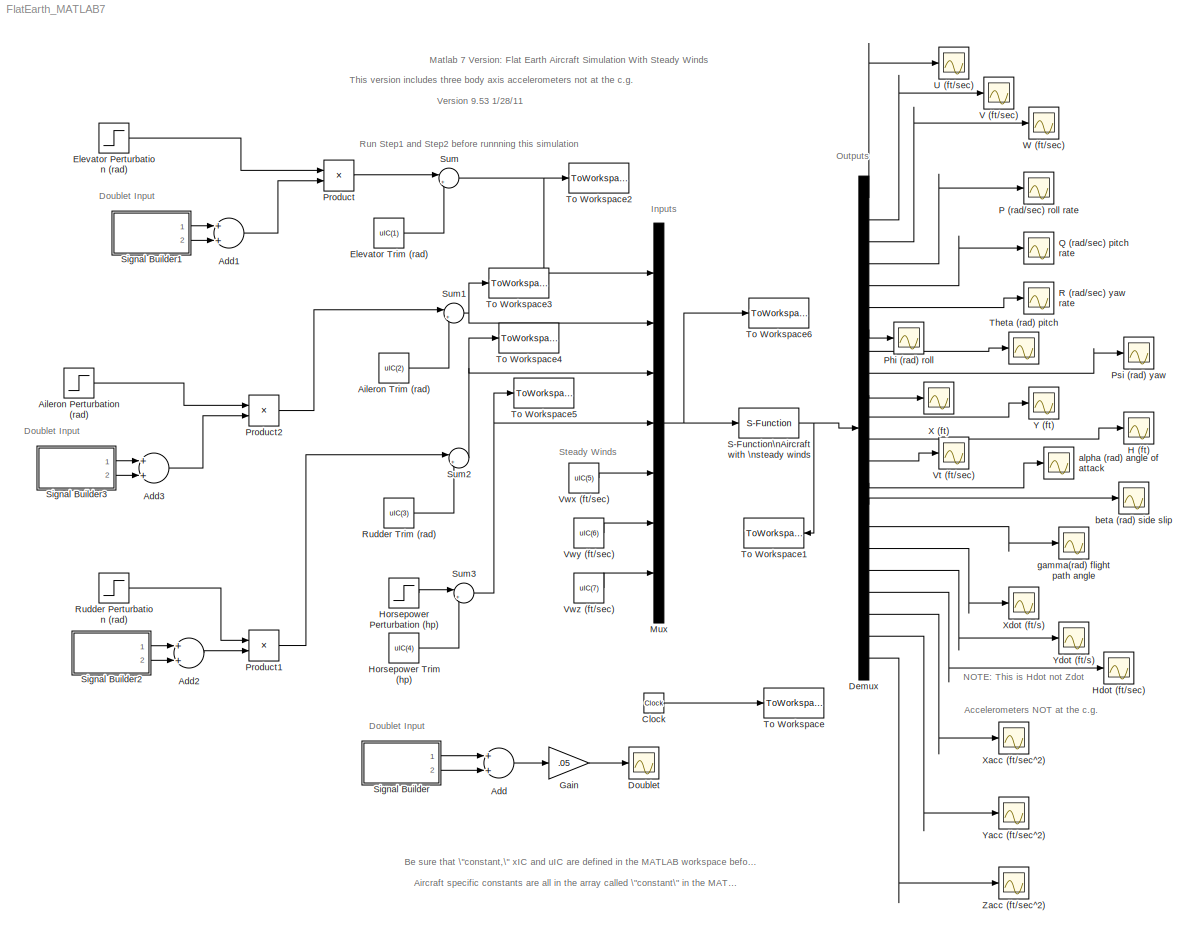
MODEL FlatEarth_MATLAB7
KIND model
BLOCK [Sum] Add
  InputSameDT = off
  OutDataTypeStr = Inherit: Inherit via internal rule
  Ports = [2, 1]
  SID = 1
  SaturateOnIntegerOverflow = off
BLOCK [Sum] Add1
  InputSameDT = off
  OutDataTypeStr = Inherit: Inherit via internal rule
  Ports = [2, 1]
  SID = 69
  SaturateOnIntegerOverflow = off
BLOCK [Sum] Add2
  InputSameDT = off
  OutDataTypeStr = Inherit: Inherit via internal rule
  Ports = [2, 1]
  SID = 84
  SaturateOnIntegerOverflow = off
BLOCK [Sum] Add3
  InputSameDT = off
  OutDataTypeStr = Inherit: Inherit via internal rule
  Ports = [2, 1]
  SID = 91
  SaturateOnIntegerOverflow = off
BLOCK [Step] Aileron Perturbation (rad)
  After = deltaApertRAD
  SID = 2
  SampleTime = 0
BLOCK [Constant] Aileron Trim (rad)
  SID = 3
  Value = uIC(2)
BLOCK [Clock] Clock
  SID = 4
BLOCK [Demux] Demux
  Outputs = 22
  Ports = [1, 22]
  SID = 5
BLOCK [Scope] Doublet
  DataFormat = StructureWithTime
  Floating = off
  NumInputPorts = 1
  Ports = [1]
  SID = 6
  SampleTime = 0
  SaveName = ScopeData22
  ShowLegends = off
BLOCK [Step] Elevator Perturbation (rad)
  After = deltaEpertRAD
  SID = 7
  SampleTime = 0
  Time = 0
BLOCK [Constant] Elevator Trim (rad)
  SID = 8
  Value = uIC(1)
BLOCK [Gain] Gain
  Gain = .05
  OutDataTypeStr = Inherit: Inherit via internal rule
  ParamDataTypeStr = Inherit: Inherit via internal rule
  SID = 9
  SaturateOnIntegerOverflow = off
BLOCK [Scope] H (ft)
  DataFormat = StructureWithTime
  Floating = off
  NumInputPorts = 1
  Ports = [1]
  SID = 10
  SampleTime = 0
  SaveName = ScopeData11
  ShowLegends = off
  TimeRange = 50
  ZoomMode = xonly
BLOCK [Scope] Hdot (ft//sec)
  DataFormat = StructureWithTime
  Floating = off
  NumInputPorts = 1
  Ports = [1]
  SID = 11
  SampleTime = 0
  SaveName = ScopeData18
  ShowLegends = off
BLOCK [Step] Horsepower Perturbation (hp)
  After = deltabhppert
  SID = 12
  SampleTime = 0
BLOCK [Constant] Horsepower Trim (hp)
  SID = 13
  Value = uIC(4)
BLOCK [Mux] Mux
  DisplayOption = bar
  Inputs = 7
  Ports = [7, 1]
  SID = 14
BLOCK [Scope] P (rad//sec) roll rate
  DataFormat = StructureWithTime
  Floating = off
  NumInputPorts = 1
  Ports = [1]
  SID = 15
  SampleTime = 0
  SaveName = ScopeData3
  ShowLegends = off
  ZoomMode = xonly
BLOCK [Scope] Phi (rad) roll
  DataFormat = StructureWithTime
  Floating = off
  NumInputPorts = 1
  Ports = [1]
  SID = 16
  SampleTime = 0
  SaveName = ScopeData6
  ShowLegends = off
BLOCK [Product] Product
  InputSameDT = off
  OutDataTypeStr = Inherit: Inherit via internal rule
  Ports = [2, 1]
  RndMeth = Floor
  SID = 76
  SaturateOnIntegerOverflow = off
BLOCK [Product] Product1
  InputSameDT = off
  OutDataTypeStr = Inherit: Inherit via internal rule
  Ports = [2, 1]
  RndMeth = Floor
  SID = 90
  SaturateOnIntegerOverflow = off
BLOCK [Product] Product2
  InputSameDT = off
  OutDataTypeStr = Inherit: Inherit via internal rule
  Ports = [2, 1]
  RndMeth = Floor
  SID = 92
  SaturateOnIntegerOverflow = off
BLOCK [Scope] Psi (rad) yaw
  DataFormat = StructureWithTime
  Floating = off
  NumInputPorts = 1
  Ports = [1]
  SID = 17
  SampleTime = 0
  SaveName = ScopeData8
  ShowLegends = off
  ZoomMode = yonly
BLOCK [Scope] Q (rad//sec) pitch rate
  DataFormat = StructureWithTime
  Floating = off
  NumInputPorts = 1
  Ports = [1]
  SID = 18
  SampleTime = 0
  SaveName = ScopeData4
  ShowLegends = off
BLOCK [Scope] R (rad//sec) yaw rate
  DataFormat = StructureWithTime
  Floating = off
  NumInputPorts = 1
  Ports = [1]
  SID = 19
  SampleTime = 0
  SaveName = ScopeData5
  ShowLegends = off
BLOCK [Step] Rudder Perturbation (rad)
  After = deltaRpertRAD
  SID = 20
  SampleTime = 0
BLOCK [Constant] Rudder Trim (rad)
  SID = 21
  Value = uIC(3)
BLOCK [S-Function] S-Function\nAircraft with \nsteady winds
  EnableBusSupport = off
  FunctionName = aircraft9
  Parameters = constant,xIC,Xa
  Ports = [1, 1]
  SID = 22
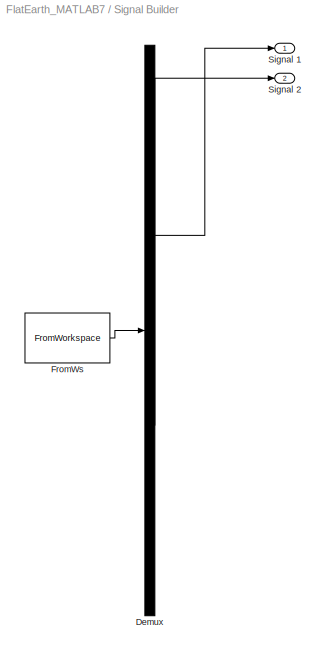
BLOCK [SubSystem] Signal Builder
  ClipboardFcn = sigbuilder_block('clipboard');
  CloseFcn = sigbuilder_block('close');
  ContinueFcn = sigbuilder_block('continue')
  CopyFcn = sigbuilder_block('copy');
  DeleteFcn = sigbuilder_block('delete');
  FunctionWithSeparateData = off
  LoadFcn = sigbuilder_block('load');
  MaskHideContents = on
  MinAlgLoopOccurrences = off
  ModelCloseFcn = sigbuilder_block('modelClose');
  NameChangeFcn = sigbuilder_block('namechange');
  Opaque = off
  OpenFcn = sigbuilder_block('open',[437.6 199.2 550.4 400 ]);
  PauseFcn = sigbuilder_block('pause')
  Ports = [0, 2]
  PreSaveFcn = sigbuilder_block('preSave');
  PropExecContextOutsideSubsystem = off
  RTWSystemCode = Auto
  RequestExecContextInheritance = off
  SID = 23
  StartFcn = sigbuilder_block('start');
  StopFcn = sigbuilder_block('stop');
  Tag = STV Subsys
BLOCK [Demux] Signal Builder/Demux
  Outputs = 2
  Ports = [1, 2]
  SID = 24
  Tag = STV Demux
BLOCK [FromWorkspace] Signal Builder/FromWs
  SID = 25
  SampleTime = 0
  SigBuilderData = DataTag0
  Tag = STV FromWs
  VariableName = tuvar
  VnvData = DataTag1
  ZeroCross = on
BLOCK [Outport] Signal Builder/Signal 1
  IconDisplay = Port number
  SID = 26
  Tag = STV Outport
BLOCK [Outport] Signal Builder/Signal 2
  IconDisplay = Port number
  Port = 2
  SID = 27
  Tag = STV Outport
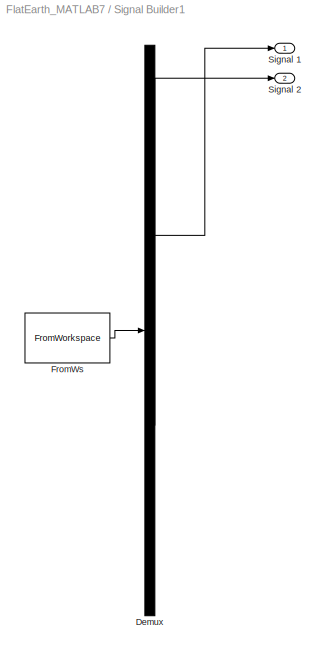
BLOCK [SubSystem] Signal Builder1
  ClipboardFcn = sigbuilder_block('clipboard');
  CloseFcn = sigbuilder_block('close');
  ContinueFcn = sigbuilder_block('continue')
  CopyFcn = sigbuilder_block('copy');
  DeleteFcn = sigbuilder_block('delete');
  FunctionWithSeparateData = off
  LoadFcn = sigbuilder_block('load');
  MaskHideContents = on
  MinAlgLoopOccurrences = off
  ModelCloseFcn = sigbuilder_block('modelClose');
  NameChangeFcn = sigbuilder_block('namechange');
  Opaque = off
  OpenFcn = sigbuilder_block('open',[437.25 199.5 550.5 399.75 ]);
  PauseFcn = sigbuilder_block('pause')
  Ports = [0, 2]
  PreSaveFcn = sigbuilder_block('preSave');
  PropExecContextOutsideSubsystem = off
  RTWSystemCode = Auto
  RequestExecContextInheritance = off
  SID = 79
  StartFcn = sigbuilder_block('start');
  StopFcn = sigbuilder_block('stop');
  Tag = STV Subsys
BLOCK [Demux] Signal Builder1/Demux
  Outputs = 2
  Ports = [1, 2]
  SID = 80
  Tag = STV Demux
BLOCK [FromWorkspace] Signal Builder1/FromWs
  SID = 81
  SampleTime = 0
  SigBuilderData = DataTag2
  Tag = STV FromWs
  VariableName = tuvar
  VnvData = DataTag3
  ZeroCross = on
BLOCK [Outport] Signal Builder1/Signal 1
  IconDisplay = Port number
  SID = 82
  Tag = STV Outport
BLOCK [Outport] Signal Builder1/Signal 2
  IconDisplay = Port number
  Port = 2
  SID = 83
  Tag = STV Outport
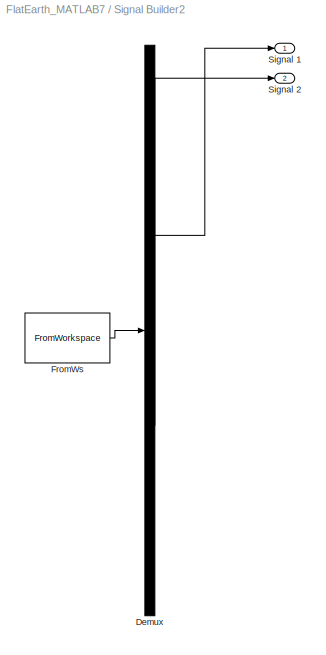
BLOCK [SubSystem] Signal Builder2
  ClipboardFcn = sigbuilder_block('clipboard');
  CloseFcn = sigbuilder_block('close');
  ContinueFcn = sigbuilder_block('continue')
  CopyFcn = sigbuilder_block('copy');
  DeleteFcn = sigbuilder_block('delete');
  FunctionWithSeparateData = off
  LoadFcn = sigbuilder_block('load');
  MaskHideContents = on
  MinAlgLoopOccurrences = off
  ModelCloseFcn = sigbuilder_block('modelClose');
  NameChangeFcn = sigbuilder_block('namechange');
  Opaque = off
  OpenFcn = sigbuilder_block('open',[437.25 199.5 550.5 399.75 ]);
  PauseFcn = sigbuilder_block('pause')
  Ports = [0, 2]
  PreSaveFcn = sigbuilder_block('preSave');
  PropExecContextOutsideSubsystem = off
  RTWSystemCode = Auto
  RequestExecContextInheritance = off
  SID = 85
  StartFcn = sigbuilder_block('start');
  StopFcn = sigbuilder_block('stop');
  Tag = STV Subsys
BLOCK [Demux] Signal Builder2/Demux
  Outputs = 2
  Ports = [1, 2]
  SID = 86
  Tag = STV Demux
BLOCK [FromWorkspace] Signal Builder2/FromWs
  SID = 87
  SampleTime = 0
  SigBuilderData = DataTag4
  Tag = STV FromWs
  VariableName = tuvar
  VnvData = DataTag5
  ZeroCross = on
BLOCK [Outport] Signal Builder2/Signal 1
  IconDisplay = Port number
  SID = 88
  Tag = STV Outport
BLOCK [Outport] Signal Builder2/Signal 2
  IconDisplay = Port number
  Port = 2
  SID = 89
  Tag = STV Outport
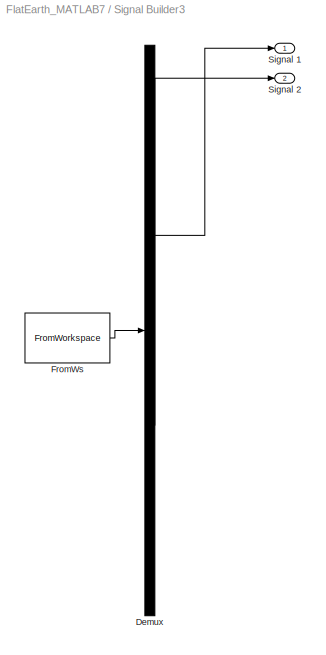
BLOCK [SubSystem] Signal Builder3
  ClipboardFcn = sigbuilder_block('clipboard');
  CloseFcn = sigbuilder_block('close');
  ContinueFcn = sigbuilder_block('continue')
  CopyFcn = sigbuilder_block('copy');
  DeleteFcn = sigbuilder_block('delete');
  FunctionWithSeparateData = off
  LoadFcn = sigbuilder_block('load');
  MaskHideContents = on
  MinAlgLoopOccurrences = off
  ModelCloseFcn = sigbuilder_block('modelClose');
  NameChangeFcn = sigbuilder_block('namechange');
  Opaque = off
  OpenFcn = sigbuilder_block('open',[437.25 199.5 550.5 399.75 ]);
  PauseFcn = sigbuilder_block('pause')
  Ports = [0, 2]
  PreSaveFcn = sigbuilder_block('preSave');
  PropExecContextOutsideSubsystem = off
  RTWSystemCode = Auto
  RequestExecContextInheritance = off
  SID = 93
  StartFcn = sigbuilder_block('start');
  StopFcn = sigbuilder_block('stop');
  Tag = STV Subsys
BLOCK [Demux] Signal Builder3/Demux
  Outputs = 2
  Ports = [1, 2]
  SID = 94
  Tag = STV Demux
BLOCK [FromWorkspace] Signal Builder3/FromWs
  SID = 95
  SampleTime = 0
  SigBuilderData = DataTag6
  Tag = STV FromWs
  VariableName = tuvar
  VnvData = DataTag7
  ZeroCross = on
BLOCK [Outport] Signal Builder3/Signal 1
  IconDisplay = Port number
  SID = 96
  Tag = STV Outport
BLOCK [Outport] Signal Builder3/Signal 2
  IconDisplay = Port number
  Port = 2
  SID = 97
  Tag = STV Outport
BLOCK [Sum] Sum
  IconShape = round
  Inputs = |++
  Ports = [2, 1]
  SID = 28
BLOCK [Sum] Sum1
  IconShape = round
  Inputs = |++
  Ports = [2, 1]
  SID = 29
BLOCK [Sum] Sum2
  IconShape = round
  Inputs = |++
  Ports = [2, 1]
  SID = 30
BLOCK [Sum] Sum3
  IconShape = round
  Inputs = |++
  Ports = [2, 1]
  SID = 31
BLOCK [Scope] Theta (rad) pitch
  DataFormat = StructureWithTime
  Floating = off
  NumInputPorts = 1
  Ports = [1]
  SID = 32
  SampleTime = 0
  SaveName = ScopeData7
  ShowLegends = off
BLOCK [ToWorkspace] To Workspace
  MaxDataPoints = inf
  Ports = [1]
  SID = 33
  SampleTime = -1
  VariableName = taircraft
BLOCK [ToWorkspace] To Workspace1
  MaxDataPoints = inf
  Ports = [1]
  SID = 34
  SampleTime = -1
  VariableName = yaircraft
BLOCK [ToWorkspace] To Workspace2
  MaxDataPoints = inf
  Ports = [1]
  SID = 35
  SampleTime = -1
  VariableName = deltaE
BLOCK [ToWorkspace] To Workspace3
  MaxDataPoints = inf
  Ports = [1]
  SID = 36
  SampleTime = -1
  VariableName = deltaA
BLOCK [ToWorkspace] To Workspace4
  MaxDataPoints = inf
  Ports = [1]
  SID = 37
  SampleTime = -1
  VariableName = deltaR
BLOCK [ToWorkspace] To Workspace5
  MaxDataPoints = inf
  Ports = [1]
  SID = 38
  SampleTime = -1
  VariableName = deltabhp
BLOCK [ToWorkspace] To Workspace6
  MaxDataPoints = inf
  Ports = [1]
  SID = 39
  SampleTime = -1
  VariableName = uaircraft
BLOCK [Scope] U (ft//sec)
  DataFormat = StructureWithTime
  Floating = off
  NumInputPorts = 1
  Ports = [1]
  SID = 40
  SampleTime = 0
  ShowLegends = off
BLOCK [Scope] V (ft//sec)
  DataFormat = StructureWithTime
  Floating = off
  NumInputPorts = 1
  Ports = [1]
  SID = 41
  SampleTime = 0
  SaveName = ScopeData1
  ShowLegends = off
BLOCK [Scope] Vt (ft//sec)
  DataFormat = StructureWithTime
  Floating = off
  NumInputPorts = 1
  Ports = [1]
  SID = 42
  SampleTime = 0
  SaveName = ScopeData12
  ShowLegends = off
  TimeRange = 50
  YMax = 99.324
  YMin = 99.319
BLOCK [Constant] Vwx (ft//sec)
  SID = 43
  Value = uIC(5)
BLOCK [Constant] Vwy (ft//sec)
  SID = 44
  Value = uIC(6)
BLOCK [Constant] Vwz (ft//sec)
  SID = 45
  Value = uIC(7)
BLOCK [Scope] W (ft//sec)
  DataFormat = StructureWithTime
  Floating = off
  NumInputPorts = 1
  Ports = [1]
  SID = 46
  SampleTime = 0
  SaveName = ScopeData2
  ShowLegends = off
  YMax = 14
  YMin = 0
BLOCK [Scope] X (ft)
  DataFormat = StructureWithTime
  Floating = off
  NumInputPorts = 1
  Ports = [1]
  SID = 47
  SampleTime = 0
  SaveName = ScopeData9
  ShowLegends = off
BLOCK [Scope] Xacc (ft//sec^2)
  DataFormat = StructureWithTime
  Floating = off
  NumInputPorts = 1
  Ports = [1]
  SID = 48
  SampleTime = 0
  SaveName = ScopeData19
  ShowLegends = off
BLOCK [Scope] Xdot (ft//s)
  DataFormat = StructureWithTime
  Floating = off
  NumInputPorts = 1
  Ports = [1]
  SID = 49
  SampleTime = 0
  SaveName = ScopeData16
  ShowLegends = off
BLOCK [Scope] Y (ft)
  DataFormat = StructureWithTime
  Floating = off
  NumInputPorts = 1
  Ports = [1]
  SID = 50
  SampleTime = 0
  SaveName = ScopeData10
  ShowLegends = off
BLOCK [Scope] Yacc (ft//sec^2)
  DataFormat = StructureWithTime
  Floating = off
  NumInputPorts = 1
  Ports = [1]
  SID = 51
  SampleTime = 0
  SaveName = ScopeData20
  ShowLegends = off
BLOCK [Scope] Ydot (ft//s)
  DataFormat = StructureWithTime
  Floating = off
  NumInputPorts = 1
  Ports = [1]
  SID = 52
  SampleTime = 0
  SaveName = ScopeData17
  ShowLegends = off
BLOCK [Scope] Zacc (ft//sec^2)
  DataFormat = StructureWithTime
  Floating = off
  NumInputPorts = 1
  Ports = [1]
  SID = 53
  SampleTime = 0
  SaveName = ScopeData21
  ShowLegends = off
BLOCK [Scope] alpha (rad) angle of attack
  DataFormat = StructureWithTime
  Floating = off
  NumInputPorts = 1
  Ports = [1]
  SID = 54
  SampleTime = 0
  SaveName = ScopeData13
  ShowLegends = off
BLOCK [Scope] beta (rad) side slip
  DataFormat = StructureWithTime
  Floating = off
  NumInputPorts = 1
  Ports = [1]
  SID = 55
  SampleTime = 0
  SaveName = ScopeData14
  ShowLegends = off
BLOCK [Scope] gamma(rad) flight path angle
  DataFormat = StructureWithTime
  Floating = off
  NumInputPorts = 1
  Ports = [1]
  SID = 56
  SampleTime = 0
  SaveName = ScopeData15
  ShowLegends = off
ANNOTATION (root): Accelerometers NOT at the c.g.
ANNOTATION (root): Aircraft specific constants are all in the array called \"constant\" in the MATLAB workspace.
ANNOTATION (root): Be sure that \"constant,\" xIC and uIC are defined in the MATLAB workspace before running.
ANNOTATION (root): Doublet Input
ANNOTATION (root): Inputs
ANNOTATION (root): Matlab 7 Version: Flat Earth Aircraft Simulation With Steady Winds
ANNOTATION (root): NOTE: This is Hdot not Zdot
ANNOTATION (root): Outputs
ANNOTATION (root): Run Step1 and Step2 before runnning this simulation
ANNOTATION (root): Steady Winds
ANNOTATION (root): This version includes three body axis accelerometers not at the c.g.
ANNOTATION (root): Version 9.53 1/28/11
LINE Add1:1 -> Product:2
LINE Add2:1 -> Product1:2
LINE Add3:1 -> Product2:2
LINE Add:1 -> Gain:1
LINE Aileron Perturbation (rad):1 -> Product2:1
LINE Aileron Trim (rad):1 -> Sum1:2
LINE Clock:1 -> To Workspace:1
LINE Demux:1 -> U (ft//sec):1
LINE Demux:10 -> X (ft):1
LINE Demux:11 -> Y (ft):1
LINE Demux:12 -> H (ft):1
LINE Demux:13 -> Vt (ft//sec):1
LINE Demux:14 -> alpha (rad) angle of attack:1
LINE Demux:15 -> beta (rad) side slip:1
LINE Demux:16 -> gamma(rad) flight path angle:1
LINE Demux:17 -> Xdot (ft//s):1
LINE Demux:18 -> Ydot (ft//s):1
LINE Demux:19 -> Hdot (ft//sec):1
LINE Demux:2 -> V (ft//sec):1
LINE Demux:20 -> Xacc (ft//sec^2):1
LINE Demux:21 -> Yacc (ft//sec^2):1
LINE Demux:22 -> Zacc (ft//sec^2):1
LINE Demux:3 -> W (ft//sec):1
LINE Demux:4 -> P (rad//sec) roll rate:1
LINE Demux:5 -> Q (rad//sec) pitch rate:1
LINE Demux:6 -> R (rad//sec) yaw rate:1
LINE Demux:7 -> Phi (rad) roll:1
LINE Demux:8 -> Theta (rad) pitch:1
LINE Demux:9 -> Psi (rad) yaw:1
LINE Elevator Perturbation (rad):1 -> Product:1
LINE Elevator Trim (rad):1 -> Sum:2
LINE Gain:1 -> Doublet:1
LINE Horsepower Perturbation (hp):1 -> Sum3:1
LINE Horsepower Trim (hp):1 -> Sum3:2
NET Mux:1 -> S-Function\nAircraft with \nsteady winds:1, To Workspace6:1
LINE Product1:1 -> Sum2:1
LINE Product2:1 -> Sum1:1
LINE Product:1 -> Sum:1
LINE Rudder Perturbation (rad):1 -> Product1:1
LINE Rudder Trim (rad):1 -> Sum2:2
NET S-Function\nAircraft with \nsteady winds:1 -> Demux:1, To Workspace1:1
LINE Signal Builder/Demux:1 -> Signal Builder/Signal 1:1
LINE Signal Builder/Demux:2 -> Signal Builder/Signal 2:1
LINE Signal Builder/FromWs:1 -> Signal Builder/Demux:1
LINE Signal Builder1/Demux:1 -> Signal Builder1/Signal 1:1
LINE Signal Builder1/Demux:2 -> Signal Builder1/Signal 2:1
LINE Signal Builder1/FromWs:1 -> Signal Builder1/Demux:1
LINE Signal Builder1:1 -> Add1:1
LINE Signal Builder1:2 -> Add1:2
LINE Signal Builder2/Demux:1 -> Signal Builder2/Signal 1:1
LINE Signal Builder2/Demux:2 -> Signal Builder2/Signal 2:1
LINE Signal Builder2/FromWs:1 -> Signal Builder2/Demux:1
LINE Signal Builder2:1 -> Add2:1
LINE Signal Builder2:2 -> Add2:2
LINE Signal Builder3/Demux:1 -> Signal Builder3/Signal 1:1
LINE Signal Builder3/Demux:2 -> Signal Builder3/Signal 2:1
LINE Signal Builder3/FromWs:1 -> Signal Builder3/Demux:1
LINE Signal Builder3:1 -> Add3:1
LINE Signal Builder3:2 -> Add3:2
LINE Signal Builder:1 -> Add:1
LINE Signal Builder:2 -> Add:2
NET Sum1:1 -> Mux:2, To Workspace3:1
NET Sum2:1 -> Mux:3, To Workspace4:1
NET Sum3:1 -> Mux:4, To Workspace5:1
NET Sum:1 -> Mux:1, To Workspace2:1
LINE Vwx (ft//sec):1 -> Mux:5
LINE Vwy (ft//sec):1 -> Mux:6
LINE Vwz (ft//sec):1 -> Mux:7
note: NET lines group one-source signal fan-out (src -> all destinations, sorted); 1:1 wires keep LINE
